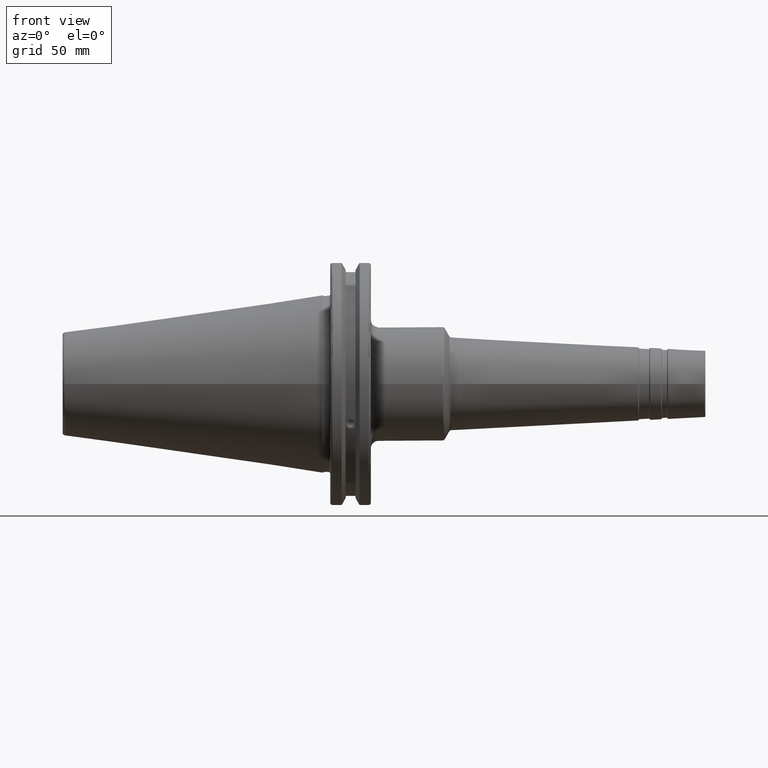
[diagram: clean part render]
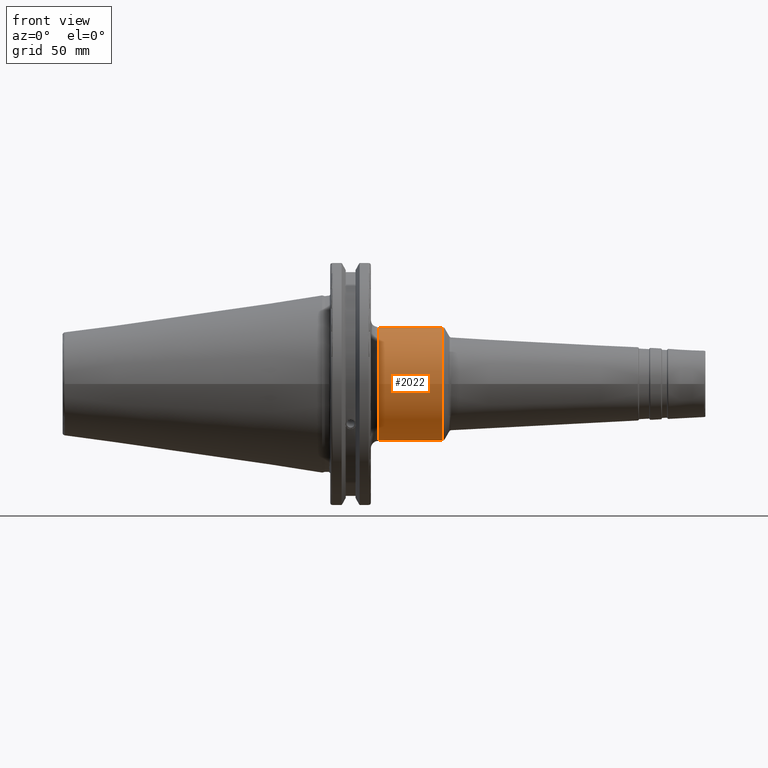
[diagram: same view with one face highlighted and labeled with its STEP entity id]
A machine part, front view. The second image highlights one B-rep face of the part: STEP entity #2022.
In plain terms, the highlighted cylindrical surface (bore or boss wall) has radius 22.25 mm, axis along (1, 0, 0).
Its self-contained STEP definition (entity closure, byte-faithful):
#150=LINE('',#3101,#251);
#251=VECTOR('',#2445,22.25);
#352=CYLINDRICAL_SURFACE('',#2152,22.25);
#380=FACE_OUTER_BOUND('',#484,.T.);
#484=EDGE_LOOP('',(#1352,#1353,#1354,#1355,#1356,#1357,#1358,#1359));
#607=CIRCLE('',#2146,22.25);
#611=CIRCLE('',#2150,22.25);
#612=CIRCLE('',#2151,22.25);
#613=CIRCLE('',#2153,22.25);
#614=CIRCLE('',#2154,22.25);
#615=CIRCLE('',#2155,22.25);
#779=VERTEX_POINT('',#3084);
#780=VERTEX_POINT('',#3085);
#783=VERTEX_POINT('',#3092);
#784=VERTEX_POINT('',#3096);
#785=VERTEX_POINT('',#3097);
#786=VERTEX_POINT('',#3099);
#1016=EDGE_CURVE('',#779,#780,#607,.T.);
#1020=EDGE_CURVE('',#780,#783,#611,.T.);
#1021=EDGE_CURVE('',#783,#779,#612,.T.);
#1022=EDGE_CURVE('',#784,#785,#613,.T.);
#1023=EDGE_CURVE('',#786,#784,#614,.T.);
#1024=EDGE_CURVE('',#786,#783,#150,.T.);
#1025=EDGE_CURVE('',#785,#786,#615,.T.);
#1352=ORIENTED_EDGE('',*,*,#1022,.F.);
#1353=ORIENTED_EDGE('',*,*,#1023,.F.);
#1354=ORIENTED_EDGE('',*,*,#1024,.T.);
#1355=ORIENTED_EDGE('',*,*,#1020,.F.);
#1356=ORIENTED_EDGE('',*,*,#1016,.F.);
#1357=ORIENTED_EDGE('',*,*,#1021,.F.);
#1358=ORIENTED_EDGE('',*,*,#1024,.F.);
#1359=ORIENTED_EDGE('',*,*,#1025,.F.);
#2022=ADVANCED_FACE('',(#380),#352,.T.);
#2146=AXIS2_PLACEMENT_3D('',#3086,#2427,#2428);
#2150=AXIS2_PLACEMENT_3D('',#3093,#2435,#2436);
#2151=AXIS2_PLACEMENT_3D('',#3094,#2437,#2438);
#2152=AXIS2_PLACEMENT_3D('',#3095,#2439,#2440);
#2153=AXIS2_PLACEMENT_3D('',#3098,#2441,#2442);
#2154=AXIS2_PLACEMENT_3D('',#3100,#2443,#2444);
#2155=AXIS2_PLACEMENT_3D('',#3102,#2446,#2447);
#2427=DIRECTION('center_axis',(-1.,0.,0.));
#2428=DIRECTION('ref_axis',(0.,-1.,-1.22464679914735E-16));
#2435=DIRECTION('center_axis',(-1.,0.,0.));
#2436=DIRECTION('ref_axis',(0.,-1.,-1.22464679914735E-16));
#2437=DIRECTION('center_axis',(-1.,0.,0.));
#2438=DIRECTION('ref_axis',(0.,-1.,-1.22464679914735E-16));
#2439=DIRECTION('center_axis',(1.,0.,0.));
#2440=DIRECTION('ref_axis',(0.,1.,0.));
#2441=DIRECTION('center_axis',(1.,0.,0.));
#2442=DIRECTION('ref_axis',(0.,-1.,1.83697019872103E-16));
#2443=DIRECTION('center_axis',(1.,0.,0.));
#2444=DIRECTION('ref_axis',(0.,-1.,1.83697019872103E-16));
#2445=DIRECTION('',(-1.,0.,0.));
#2446=DIRECTION('center_axis',(1.,0.,0.));
#2447=DIRECTION('ref_axis',(0.,-1.,1.83697019872103E-16));
#3084=CARTESIAN_POINT('',(22.05,22.25,0.));
#3085=CARTESIAN_POINT('',(22.05,-2.72483912810286E-15,-22.25));
#3086=CARTESIAN_POINT('Origin',(22.05,0.,0.));
#3092=CARTESIAN_POINT('',(22.05,-22.25,-2.72483912810286E-15));
#3093=CARTESIAN_POINT('Origin',(22.05,0.,0.));
#3094=CARTESIAN_POINT('Origin',(22.05,0.,0.));
#3095=CARTESIAN_POINT('Origin',(33.3676372788327,0.,0.));
#3096=CARTESIAN_POINT('',(47.1079242884758,22.25,-1.36241956405143E-15));
#3097=CARTESIAN_POINT('',(47.1079242884758,-2.72483912810286E-15,22.25));
#3098=CARTESIAN_POINT('Origin',(47.1079242884758,0.,0.));
#3099=CARTESIAN_POINT('',(47.1079242884758,-22.25,-2.72483912810286E-15));
#3100=CARTESIAN_POINT('Origin',(47.1079242884758,0.,0.));
#3101=CARTESIAN_POINT('',(33.3676372788327,-22.25,-2.72483912810286E-15));
#3102=CARTESIAN_POINT('Origin',(47.1079242884758,0.,0.));